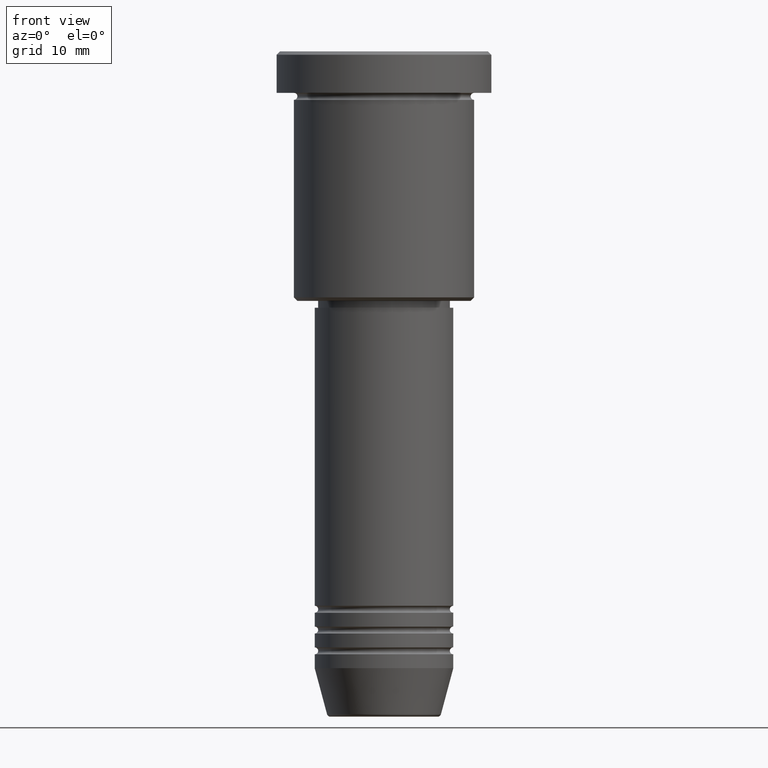
[diagram: clean part render]
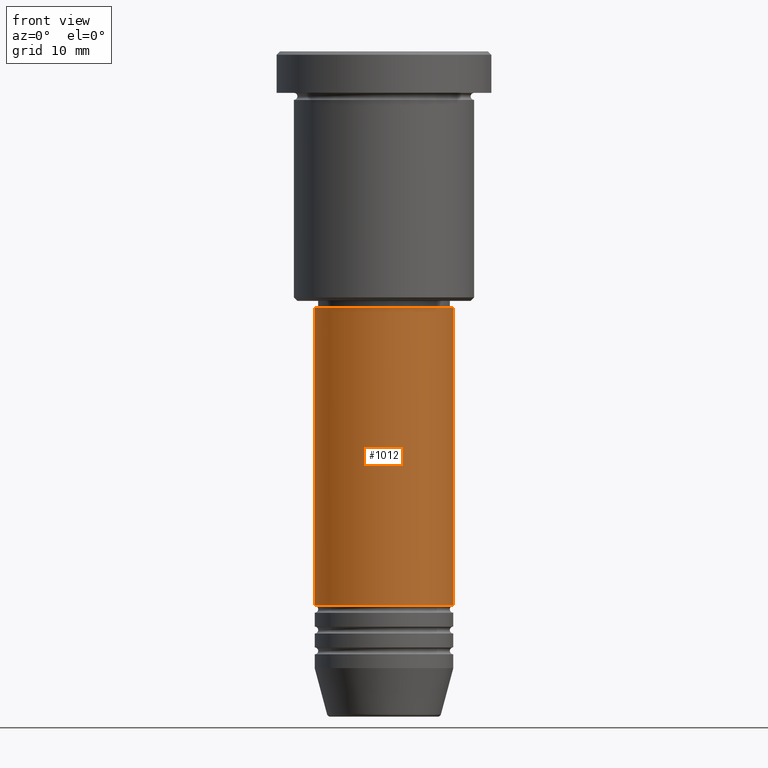
[diagram: same view with one face highlighted and labeled with its STEP entity id]
A machine part, front view. The second image highlights one B-rep face of the part: STEP entity #1012.
In plain terms, the highlighted cylindrical surface (partial cylindrical patch) has radius 10 mm, axis along (-0, -0, 1).
Its self-contained STEP definition (entity closure, byte-faithful):
#9 = CYLINDRICAL_SURFACE ( 'NONE', #1095, 10.00000000000000000 ) ;
#40 = CARTESIAN_POINT ( 'NONE',  ( 10.00000000000000000, 0.000000000000000000, -36.99999999999997868 ) ) ;
#42 = EDGE_LOOP ( 'NONE', ( #72, #979, #657, #392 ) ) ;
#72 = ORIENTED_EDGE ( 'NONE', *, *, #244, .F. ) ;
#89 = FACE_OUTER_BOUND ( 'NONE', #42, .T. ) ;
#136 = EDGE_CURVE ( 'NONE', #847, #1010, #620, .T. ) ;
#144 = CARTESIAN_POINT ( 'NONE',  ( 0.000000000000000000, 0.000000000000000000, -79.99999999999997158 ) ) ;
#202 = CARTESIAN_POINT ( 'NONE',  ( -10.00000000000000000, 1.224646799147353256E-15, -36.99999999999997868 ) ) ;
#244 = EDGE_CURVE ( 'NONE', #847, #1121, #422, .T. ) ;
#248 = DIRECTION ( 'NONE',  ( -0.000000000000000000, -0.000000000000000000, 1.000000000000000000 ) ) ;
#261 = DIRECTION ( 'NONE',  ( -0.000000000000000000, -0.000000000000000000, 1.000000000000000000 ) ) ;
#383 = CARTESIAN_POINT ( 'NONE',  ( 0.000000000000000000, 0.000000000000000000, -36.99999999999997868 ) ) ;
#392 = ORIENTED_EDGE ( 'NONE', *, *, #1136, .F. ) ;
#422 = LINE ( 'NONE', #503, #1145 ) ;
#482 = VECTOR ( 'NONE', #501, 1000.000000000000000 ) ;
#501 = DIRECTION ( 'NONE',  ( -0.000000000000000000, -0.000000000000000000, 1.000000000000000000 ) ) ;
#503 = CARTESIAN_POINT ( 'NONE',  ( -10.00000000000000000, 1.224646799147353256E-15, 0.000000000000000000 ) ) ;
#553 = CARTESIAN_POINT ( 'NONE',  ( 10.00000000000000000, 0.000000000000000000, -79.99999999999997158 ) ) ;
#574 = EDGE_CURVE ( 'NONE', #1010, #1086, #1137, .T. ) ;
#576 = DIRECTION ( 'NONE',  ( 1.000000000000000000, 0.000000000000000000, 0.000000000000000000 ) ) ;
#607 = AXIS2_PLACEMENT_3D ( 'NONE', #383, #1111, #576 ) ;
#620 = CIRCLE ( 'NONE', #1047, 10.00000000000000000 ) ;
#642 = DIRECTION ( 'NONE',  ( 1.000000000000000000, 0.000000000000000000, 0.000000000000000000 ) ) ;
#657 = ORIENTED_EDGE ( 'NONE', *, *, #574, .T. ) ;
#658 = CARTESIAN_POINT ( 'NONE',  ( 0.000000000000000000, 0.000000000000000000, 0.000000000000000000 ) ) ;
#847 = VERTEX_POINT ( 'NONE', #960 ) ;
#852 = CIRCLE ( 'NONE', #607, 10.00000000000000000 ) ;
#951 = CARTESIAN_POINT ( 'NONE',  ( 10.00000000000000000, 0.000000000000000000, 0.000000000000000000 ) ) ;
#960 = CARTESIAN_POINT ( 'NONE',  ( -10.00000000000000000, 1.224646799147353256E-15, -79.99999999999997158 ) ) ;
#979 = ORIENTED_EDGE ( 'NONE', *, *, #136, .T. ) ;
#1010 = VERTEX_POINT ( 'NONE', #553 ) ;
#1012 = ADVANCED_FACE ( 'NONE', ( #89 ), #9, .T. ) ;
#1031 = DIRECTION ( 'NONE',  ( -0.000000000000000000, -0.000000000000000000, 1.000000000000000000 ) ) ;
#1047 = AXIS2_PLACEMENT_3D ( 'NONE', #144, #1031, #1131 ) ;
#1086 = VERTEX_POINT ( 'NONE', #40 ) ;
#1095 = AXIS2_PLACEMENT_3D ( 'NONE', #658, #261, #642 ) ;
#1111 = DIRECTION ( 'NONE',  ( -0.000000000000000000, -0.000000000000000000, 1.000000000000000000 ) ) ;
#1121 = VERTEX_POINT ( 'NONE', #202 ) ;
#1131 = DIRECTION ( 'NONE',  ( 1.000000000000000000, 0.000000000000000000, 0.000000000000000000 ) ) ;
#1136 = EDGE_CURVE ( 'NONE', #1121, #1086, #852, .T. ) ;
#1137 = LINE ( 'NONE', #951, #482 ) ;
#1145 = VECTOR ( 'NONE', #248, 1000.000000000000000 ) ;